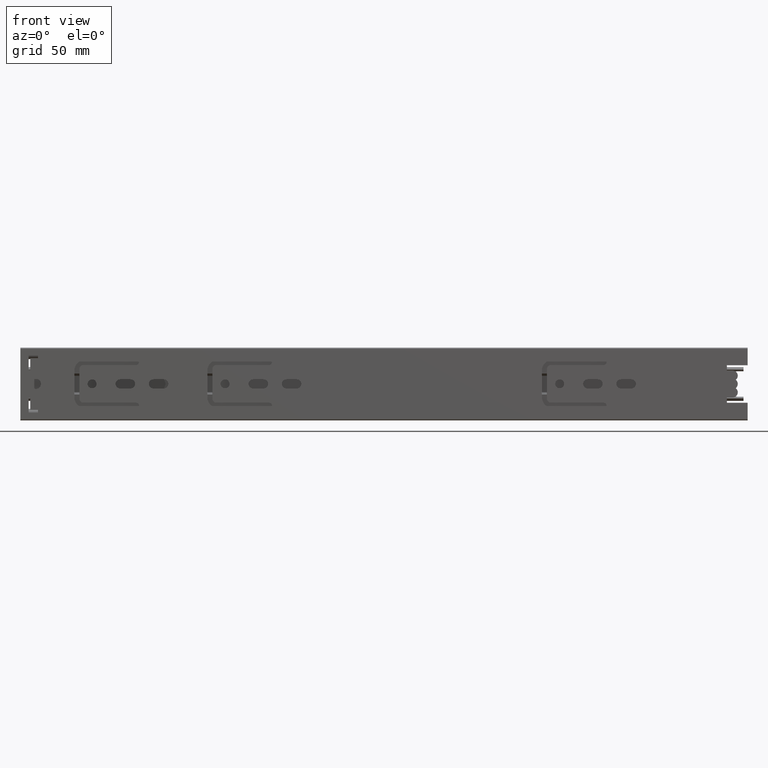
[diagram: clean part render]
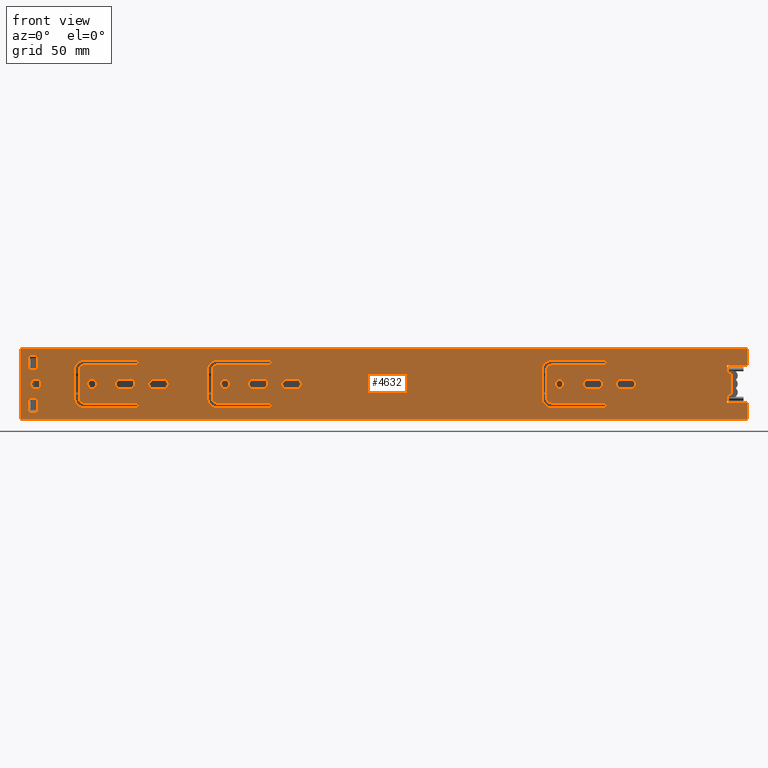
[diagram: same view with one face highlighted and labeled with its STEP entity id]
A machine part, front view. The second image highlights one B-rep face of the part: STEP entity #4632.
In plain terms, the highlighted planar face has unit normal (0, -1, 0).
Its self-contained STEP definition (entity closure, byte-faithful):
#162=FACE_BOUND('',#492,.T.);
#163=FACE_BOUND('',#493,.T.);
#164=FACE_BOUND('',#494,.T.);
#165=FACE_BOUND('',#495,.T.);
#166=FACE_BOUND('',#496,.T.);
#167=FACE_BOUND('',#497,.T.);
#168=FACE_BOUND('',#498,.T.);
#169=FACE_BOUND('',#499,.T.);
#170=FACE_BOUND('',#500,.T.);
#171=FACE_BOUND('',#501,.T.);
#172=FACE_BOUND('',#502,.T.);
#173=FACE_BOUND('',#503,.T.);
#174=FACE_BOUND('',#504,.T.);
#175=FACE_BOUND('',#505,.T.);
#176=FACE_BOUND('',#506,.T.);
#231=FACE_OUTER_BOUND('',#491,.T.);
#491=EDGE_LOOP('',(#3266,#3267,#3268,#3269,#3270,#3271,#3272,#3273,#3274,
#3275,#3276,#3277));
#492=EDGE_LOOP('',(#3278,#3279,#3280,#3281));
#493=EDGE_LOOP('',(#3282,#3283,#3284,#3285));
#494=EDGE_LOOP('',(#3286,#3287,#3288,#3289));
#495=EDGE_LOOP('',(#3290,#3291,#3292,#3293));
#496=EDGE_LOOP('',(#3294));
#497=EDGE_LOOP('',(#3295));
#498=EDGE_LOOP('',(#3296));
#499=EDGE_LOOP('',(#3297));
#500=EDGE_LOOP('',(#3298,#3299,#3300,#3301));
#501=EDGE_LOOP('',(#3302,#3303,#3304,#3305));
#502=EDGE_LOOP('',(#3306,#3307,#3308,#3309));
#503=EDGE_LOOP('',(#3310,#3311,#3312,#3313));
#504=EDGE_LOOP('',(#3314,#3315,#3316,#3317,#3318,#3319,#3320,#3321,#3322,
#3323,#3324,#3325));
#505=EDGE_LOOP('',(#3326,#3327,#3328,#3329,#3330,#3331,#3332,#3333,#3334,
#3335,#3336,#3337));
#506=EDGE_LOOP('',(#3338,#3339,#3340,#3341,#3342,#3343,#3344,#3345,#3346,
#3347,#3348,#3349));
#783=LINE('',#6746,#1281);
#788=LINE('',#6755,#1286);
#839=LINE('',#6927,#1337);
#842=LINE('',#6932,#1340);
#844=LINE('',#6936,#1342);
#845=LINE('',#6939,#1343);
#848=LINE('',#6944,#1346);
#849=LINE('',#6947,#1347);
#850=LINE('',#6949,#1348);
#851=LINE('',#6951,#1349);
#852=LINE('',#6953,#1350);
#853=LINE('',#6954,#1351);
#854=LINE('',#6959,#1352);
#855=LINE('',#6962,#1353);
#856=LINE('',#6967,#1354);
#857=LINE('',#6970,#1355);
#858=LINE('',#6975,#1356);
#859=LINE('',#6978,#1357);
#860=LINE('',#6981,#1358);
#861=LINE('',#6983,#1359);
#862=LINE('',#6985,#1360);
#863=LINE('',#6986,#1361);
#864=LINE('',#6997,#1362);
#865=LINE('',#6999,#1363);
#866=LINE('',#7001,#1364);
#867=LINE('',#7002,#1365);
#868=LINE('',#7007,#1366);
#869=LINE('',#7010,#1367);
#870=LINE('',#7015,#1368);
#871=LINE('',#7018,#1369);
#872=LINE('',#7023,#1370);
#873=LINE('',#7026,#1371);
#874=LINE('',#7031,#1372);
#875=LINE('',#7035,#1373);
#876=LINE('',#7039,#1374);
#877=LINE('',#7043,#1375);
#878=LINE('',#7047,#1376);
#879=LINE('',#7050,#1377);
#880=LINE('',#7055,#1378);
#881=LINE('',#7059,#1379);
#882=LINE('',#7063,#1380);
#883=LINE('',#7067,#1381);
#884=LINE('',#7071,#1382);
#885=LINE('',#7074,#1383);
#886=LINE('',#7079,#1384);
#887=LINE('',#7083,#1385);
#888=LINE('',#7087,#1386);
#889=LINE('',#7091,#1387);
#890=LINE('',#7095,#1388);
#891=LINE('',#7098,#1389);
#1281=VECTOR('',#5367,10.);
#1286=VECTOR('',#5374,2.00000000000003);
#1337=VECTOR('',#5501,2.00000000000003);
#1340=VECTOR('',#5506,4.00000000000001);
#1342=VECTOR('',#5510,10.);
#1343=VECTOR('',#5513,3.99999999999999);
#1346=VECTOR('',#5518,10.);
#1347=VECTOR('',#5521,8.);
#1348=VECTOR('',#5522,350.);
#1349=VECTOR('',#5523,34.);
#1350=VECTOR('',#5524,350.);
#1351=VECTOR('',#5525,8.);
#1352=VECTOR('',#5528,5.);
#1353=VECTOR('',#5531,5.);
#1354=VECTOR('',#5534,5.);
#1355=VECTOR('',#5537,5.);
#1356=VECTOR('',#5540,5.);
#1357=VECTOR('',#5543,5.);
#1358=VECTOR('',#5544,7.);
#1359=VECTOR('',#5545,4.50000000000003);
#1360=VECTOR('',#5546,7.);
#1361=VECTOR('',#5547,4.50000000000003);
#1362=VECTOR('',#5556,7.);
#1363=VECTOR('',#5557,4.50000000000003);
#1364=VECTOR('',#5558,7.);
#1365=VECTOR('',#5559,4.50000000000003);
#1366=VECTOR('',#5562,5.);
#1367=VECTOR('',#5565,5.);
#1368=VECTOR('',#5568,5.);
#1369=VECTOR('',#5571,5.);
#1370=VECTOR('',#5574,5.);
#1371=VECTOR('',#5577,5.);
#1372=VECTOR('',#5580,25.4);
#1373=VECTOR('',#5583,14.2);
#1374=VECTOR('',#5586,25.4);
#1375=VECTOR('',#5589,24.8);
#1376=VECTOR('',#5592,13.);
#1377=VECTOR('',#5595,24.8);
#1378=VECTOR('',#5598,24.7999999999999);
#1379=VECTOR('',#5601,13.);
#1380=VECTOR('',#5604,24.7999999999999);
#1381=VECTOR('',#5607,25.3999999999999);
#1382=VECTOR('',#5610,14.2);
#1383=VECTOR('',#5613,25.3999999999999);
#1384=VECTOR('',#5616,25.4);
#1385=VECTOR('',#5619,14.2);
#1386=VECTOR('',#5622,25.4);
#1387=VECTOR('',#5625,24.8);
#1388=VECTOR('',#5628,13.);
#1389=VECTOR('',#5631,24.8);
#1808=CIRCLE('',#4930,2.2);
#1809=CIRCLE('',#4931,2.2);
#1810=CIRCLE('',#4932,2.20000000000006);
#1811=CIRCLE('',#4933,2.20000000000006);
#1812=CIRCLE('',#4934,2.2);
#1813=CIRCLE('',#4935,2.2);
#1814=CIRCLE('',#4936,2.45);
#1815=CIRCLE('',#4937,2.15);
#1816=CIRCLE('',#4938,2.15);
#1817=CIRCLE('',#4939,2.15);
#1818=CIRCLE('',#4940,2.2);
#1819=CIRCLE('',#4941,2.2);
#1820=CIRCLE('',#4942,2.20000000000006);
#1821=CIRCLE('',#4943,2.20000000000006);
#1822=CIRCLE('',#4944,2.2);
#1823=CIRCLE('',#4945,2.2);
#1824=CIRCLE('',#4946,1.2);
#1825=CIRCLE('',#4947,1.99999999999999);
#1826=CIRCLE('',#4948,1.99999999999998);
#1827=CIRCLE('',#4949,1.2);
#1828=CIRCLE('',#4950,5.);
#1829=CIRCLE('',#4951,5.);
#1830=CIRCLE('',#4952,1.2);
#1831=CIRCLE('',#4953,5.);
#1832=CIRCLE('',#4954,5.);
#1833=CIRCLE('',#4955,1.2);
#1834=CIRCLE('',#4956,2.);
#1835=CIRCLE('',#4957,2.00000000000001);
#1836=CIRCLE('',#4958,1.2);
#1837=CIRCLE('',#4959,1.99999999999999);
#1838=CIRCLE('',#4960,1.99999999999999);
#1839=CIRCLE('',#4961,1.2);
#1840=CIRCLE('',#4962,5.00000000000002);
#1841=CIRCLE('',#4963,5.00000000000002);
#1968=VERTEX_POINT('',#6743);
#1969=VERTEX_POINT('',#6745);
#1972=VERTEX_POINT('',#6753);
#2055=VERTEX_POINT('',#6926);
#2056=VERTEX_POINT('',#6930);
#2057=VERTEX_POINT('',#6934);
#2058=VERTEX_POINT('',#6938);
#2059=VERTEX_POINT('',#6942);
#2060=VERTEX_POINT('',#6946);
#2061=VERTEX_POINT('',#6948);
#2062=VERTEX_POINT('',#6950);
#2063=VERTEX_POINT('',#6952);
#2064=VERTEX_POINT('',#6955);
#2065=VERTEX_POINT('',#6956);
#2066=VERTEX_POINT('',#6958);
#2067=VERTEX_POINT('',#6960);
#2068=VERTEX_POINT('',#6963);
#2069=VERTEX_POINT('',#6964);
#2070=VERTEX_POINT('',#6966);
#2071=VERTEX_POINT('',#6968);
#2072=VERTEX_POINT('',#6971);
#2073=VERTEX_POINT('',#6972);
#2074=VERTEX_POINT('',#6974);
#2075=VERTEX_POINT('',#6976);
#2076=VERTEX_POINT('',#6979);
#2077=VERTEX_POINT('',#6980);
#2078=VERTEX_POINT('',#6982);
#2079=VERTEX_POINT('',#6984);
#2080=VERTEX_POINT('',#6987);
#2081=VERTEX_POINT('',#6989);
#2082=VERTEX_POINT('',#6991);
#2083=VERTEX_POINT('',#6993);
#2084=VERTEX_POINT('',#6995);
#2085=VERTEX_POINT('',#6996);
#2086=VERTEX_POINT('',#6998);
#2087=VERTEX_POINT('',#7000);
#2088=VERTEX_POINT('',#7003);
#2089=VERTEX_POINT('',#7004);
#2090=VERTEX_POINT('',#7006);
#2091=VERTEX_POINT('',#7008);
#2092=VERTEX_POINT('',#7011);
#2093=VERTEX_POINT('',#7012);
#2094=VERTEX_POINT('',#7014);
#2095=VERTEX_POINT('',#7016);
#2096=VERTEX_POINT('',#7019);
#2097=VERTEX_POINT('',#7020);
#2098=VERTEX_POINT('',#7022);
#2099=VERTEX_POINT('',#7024);
#2100=VERTEX_POINT('',#7027);
#2101=VERTEX_POINT('',#7028);
#2102=VERTEX_POINT('',#7030);
#2103=VERTEX_POINT('',#7032);
#2104=VERTEX_POINT('',#7034);
#2105=VERTEX_POINT('',#7036);
#2106=VERTEX_POINT('',#7038);
#2107=VERTEX_POINT('',#7040);
#2108=VERTEX_POINT('',#7042);
#2109=VERTEX_POINT('',#7044);
#2110=VERTEX_POINT('',#7046);
#2111=VERTEX_POINT('',#7048);
#2112=VERTEX_POINT('',#7051);
#2113=VERTEX_POINT('',#7052);
#2114=VERTEX_POINT('',#7054);
#2115=VERTEX_POINT('',#7056);
#2116=VERTEX_POINT('',#7058);
#2117=VERTEX_POINT('',#7060);
#2118=VERTEX_POINT('',#7062);
#2119=VERTEX_POINT('',#7064);
#2120=VERTEX_POINT('',#7066);
#2121=VERTEX_POINT('',#7068);
#2122=VERTEX_POINT('',#7070);
#2123=VERTEX_POINT('',#7072);
#2124=VERTEX_POINT('',#7075);
#2125=VERTEX_POINT('',#7076);
#2126=VERTEX_POINT('',#7078);
#2127=VERTEX_POINT('',#7080);
#2128=VERTEX_POINT('',#7082);
#2129=VERTEX_POINT('',#7084);
#2130=VERTEX_POINT('',#7086);
#2131=VERTEX_POINT('',#7088);
#2132=VERTEX_POINT('',#7090);
#2133=VERTEX_POINT('',#7092);
#2134=VERTEX_POINT('',#7094);
#2135=VERTEX_POINT('',#7096);
#2439=EDGE_CURVE('',#1968,#1969,#783,.T.);
#2444=EDGE_CURVE('',#1972,#1968,#788,.T.);
#2529=EDGE_CURVE('',#1969,#2055,#839,.T.);
#2532=EDGE_CURVE('',#1972,#2056,#842,.T.);
#2534=EDGE_CURVE('',#2056,#2057,#844,.T.);
#2535=EDGE_CURVE('',#2058,#2055,#845,.T.);
#2538=EDGE_CURVE('',#2059,#2058,#848,.T.);
#2539=EDGE_CURVE('',#2060,#2057,#849,.T.);
#2540=EDGE_CURVE('',#2061,#2060,#850,.T.);
#2541=EDGE_CURVE('',#2062,#2061,#851,.T.);
#2542=EDGE_CURVE('',#2062,#2063,#852,.T.);
#2543=EDGE_CURVE('',#2059,#2063,#853,.T.);
#2544=EDGE_CURVE('',#2064,#2065,#1808,.T.);
#2545=EDGE_CURVE('',#2065,#2066,#854,.T.);
#2546=EDGE_CURVE('',#2066,#2067,#1809,.T.);
#2547=EDGE_CURVE('',#2067,#2064,#855,.T.);
#2548=EDGE_CURVE('',#2068,#2069,#1810,.T.);
#2549=EDGE_CURVE('',#2069,#2070,#856,.T.);
#2550=EDGE_CURVE('',#2070,#2071,#1811,.T.);
#2551=EDGE_CURVE('',#2071,#2068,#857,.T.);
#2552=EDGE_CURVE('',#2072,#2073,#1812,.T.);
#2553=EDGE_CURVE('',#2073,#2074,#858,.T.);
#2554=EDGE_CURVE('',#2074,#2075,#1813,.T.);
#2555=EDGE_CURVE('',#2075,#2072,#859,.T.);
#2556=EDGE_CURVE('',#2076,#2077,#860,.T.);
#2557=EDGE_CURVE('',#2077,#2078,#861,.T.);
#2558=EDGE_CURVE('',#2078,#2079,#862,.T.);
#2559=EDGE_CURVE('',#2079,#2076,#863,.T.);
#2560=EDGE_CURVE('',#2080,#2080,#1814,.T.);
#2561=EDGE_CURVE('',#2081,#2081,#1815,.T.);
#2562=EDGE_CURVE('',#2082,#2082,#1816,.T.);
#2563=EDGE_CURVE('',#2083,#2083,#1817,.T.);
#2564=EDGE_CURVE('',#2084,#2085,#864,.T.);
#2565=EDGE_CURVE('',#2085,#2086,#865,.T.);
#2566=EDGE_CURVE('',#2086,#2087,#866,.T.);
#2567=EDGE_CURVE('',#2087,#2084,#867,.T.);
#2568=EDGE_CURVE('',#2088,#2089,#1818,.T.);
#2569=EDGE_CURVE('',#2089,#2090,#868,.T.);
#2570=EDGE_CURVE('',#2090,#2091,#1819,.T.);
#2571=EDGE_CURVE('',#2091,#2088,#869,.T.);
#2572=EDGE_CURVE('',#2092,#2093,#1820,.T.);
#2573=EDGE_CURVE('',#2093,#2094,#870,.T.);
#2574=EDGE_CURVE('',#2094,#2095,#1821,.T.);
#2575=EDGE_CURVE('',#2095,#2092,#871,.T.);
#2576=EDGE_CURVE('',#2096,#2097,#1822,.T.);
#2577=EDGE_CURVE('',#2097,#2098,#872,.T.);
#2578=EDGE_CURVE('',#2098,#2099,#1823,.T.);
#2579=EDGE_CURVE('',#2099,#2096,#873,.T.);
#2580=EDGE_CURVE('',#2100,#2101,#1824,.T.);
#2581=EDGE_CURVE('',#2101,#2102,#874,.T.);
#2582=EDGE_CURVE('',#2102,#2103,#1825,.T.);
#2583=EDGE_CURVE('',#2103,#2104,#875,.T.);
#2584=EDGE_CURVE('',#2104,#2105,#1826,.T.);
#2585=EDGE_CURVE('',#2105,#2106,#876,.T.);
#2586=EDGE_CURVE('',#2106,#2107,#1827,.T.);
#2587=EDGE_CURVE('',#2107,#2108,#877,.T.);
#2588=EDGE_CURVE('',#2108,#2109,#1828,.T.);
#2589=EDGE_CURVE('',#2109,#2110,#878,.T.);
#2590=EDGE_CURVE('',#2110,#2111,#1829,.T.);
#2591=EDGE_CURVE('',#2111,#2100,#879,.T.);
#2592=EDGE_CURVE('',#2112,#2113,#1830,.T.);
#2593=EDGE_CURVE('',#2113,#2114,#880,.T.);
#2594=EDGE_CURVE('',#2114,#2115,#1831,.T.);
#2595=EDGE_CURVE('',#2115,#2116,#881,.T.);
#2596=EDGE_CURVE('',#2116,#2117,#1832,.T.);
#2597=EDGE_CURVE('',#2117,#2118,#882,.T.);
#2598=EDGE_CURVE('',#2118,#2119,#1833,.T.);
#2599=EDGE_CURVE('',#2119,#2120,#883,.T.);
#2600=EDGE_CURVE('',#2120,#2121,#1834,.T.);
#2601=EDGE_CURVE('',#2121,#2122,#884,.T.);
#2602=EDGE_CURVE('',#2122,#2123,#1835,.T.);
#2603=EDGE_CURVE('',#2123,#2112,#885,.T.);
#2604=EDGE_CURVE('',#2124,#2125,#1836,.T.);
#2605=EDGE_CURVE('',#2125,#2126,#886,.T.);
#2606=EDGE_CURVE('',#2126,#2127,#1837,.T.);
#2607=EDGE_CURVE('',#2127,#2128,#887,.T.);
#2608=EDGE_CURVE('',#2128,#2129,#1838,.T.);
#2609=EDGE_CURVE('',#2129,#2130,#888,.T.);
#2610=EDGE_CURVE('',#2130,#2131,#1839,.T.);
#2611=EDGE_CURVE('',#2131,#2132,#889,.T.);
#2612=EDGE_CURVE('',#2132,#2133,#1840,.T.);
#2613=EDGE_CURVE('',#2133,#2134,#890,.T.);
#2614=EDGE_CURVE('',#2134,#2135,#1841,.T.);
#2615=EDGE_CURVE('',#2135,#2124,#891,.T.);
#3266=ORIENTED_EDGE('',*,*,#2444,.F.);
#3267=ORIENTED_EDGE('',*,*,#2532,.T.);
#3268=ORIENTED_EDGE('',*,*,#2534,.T.);
#3269=ORIENTED_EDGE('',*,*,#2539,.F.);
#3270=ORIENTED_EDGE('',*,*,#2540,.F.);
#3271=ORIENTED_EDGE('',*,*,#2541,.F.);
#3272=ORIENTED_EDGE('',*,*,#2542,.T.);
#3273=ORIENTED_EDGE('',*,*,#2543,.F.);
#3274=ORIENTED_EDGE('',*,*,#2538,.T.);
#3275=ORIENTED_EDGE('',*,*,#2535,.T.);
#3276=ORIENTED_EDGE('',*,*,#2529,.F.);
#3277=ORIENTED_EDGE('',*,*,#2439,.F.);
#3278=ORIENTED_EDGE('',*,*,#2544,.T.);
#3279=ORIENTED_EDGE('',*,*,#2545,.T.);
#3280=ORIENTED_EDGE('',*,*,#2546,.T.);
#3281=ORIENTED_EDGE('',*,*,#2547,.T.);
#3282=ORIENTED_EDGE('',*,*,#2548,.T.);
#3283=ORIENTED_EDGE('',*,*,#2549,.T.);
#3284=ORIENTED_EDGE('',*,*,#2550,.T.);
#3285=ORIENTED_EDGE('',*,*,#2551,.T.);
#3286=ORIENTED_EDGE('',*,*,#2552,.T.);
#3287=ORIENTED_EDGE('',*,*,#2553,.T.);
#3288=ORIENTED_EDGE('',*,*,#2554,.T.);
#3289=ORIENTED_EDGE('',*,*,#2555,.T.);
#3290=ORIENTED_EDGE('',*,*,#2556,.T.);
#3291=ORIENTED_EDGE('',*,*,#2557,.T.);
#3292=ORIENTED_EDGE('',*,*,#2558,.T.);
#3293=ORIENTED_EDGE('',*,*,#2559,.T.);
#3294=ORIENTED_EDGE('',*,*,#2560,.T.);
#3295=ORIENTED_EDGE('',*,*,#2561,.T.);
#3296=ORIENTED_EDGE('',*,*,#2562,.T.);
#3297=ORIENTED_EDGE('',*,*,#2563,.T.);
#3298=ORIENTED_EDGE('',*,*,#2564,.T.);
#3299=ORIENTED_EDGE('',*,*,#2565,.T.);
#3300=ORIENTED_EDGE('',*,*,#2566,.T.);
#3301=ORIENTED_EDGE('',*,*,#2567,.T.);
#3302=ORIENTED_EDGE('',*,*,#2568,.T.);
#3303=ORIENTED_EDGE('',*,*,#2569,.T.);
#3304=ORIENTED_EDGE('',*,*,#2570,.T.);
#3305=ORIENTED_EDGE('',*,*,#2571,.T.);
#3306=ORIENTED_EDGE('',*,*,#2572,.T.);
#3307=ORIENTED_EDGE('',*,*,#2573,.T.);
#3308=ORIENTED_EDGE('',*,*,#2574,.T.);
#3309=ORIENTED_EDGE('',*,*,#2575,.T.);
#3310=ORIENTED_EDGE('',*,*,#2576,.T.);
#3311=ORIENTED_EDGE('',*,*,#2577,.T.);
#3312=ORIENTED_EDGE('',*,*,#2578,.T.);
#3313=ORIENTED_EDGE('',*,*,#2579,.T.);
#3314=ORIENTED_EDGE('',*,*,#2580,.T.);
#3315=ORIENTED_EDGE('',*,*,#2581,.T.);
#3316=ORIENTED_EDGE('',*,*,#2582,.T.);
#3317=ORIENTED_EDGE('',*,*,#2583,.T.);
#3318=ORIENTED_EDGE('',*,*,#2584,.T.);
#3319=ORIENTED_EDGE('',*,*,#2585,.T.);
#3320=ORIENTED_EDGE('',*,*,#2586,.T.);
#3321=ORIENTED_EDGE('',*,*,#2587,.T.);
#3322=ORIENTED_EDGE('',*,*,#2588,.T.);
#3323=ORIENTED_EDGE('',*,*,#2589,.T.);
#3324=ORIENTED_EDGE('',*,*,#2590,.T.);
#3325=ORIENTED_EDGE('',*,*,#2591,.T.);
#3326=ORIENTED_EDGE('',*,*,#2592,.T.);
#3327=ORIENTED_EDGE('',*,*,#2593,.T.);
#3328=ORIENTED_EDGE('',*,*,#2594,.T.);
#3329=ORIENTED_EDGE('',*,*,#2595,.T.);
#3330=ORIENTED_EDGE('',*,*,#2596,.T.);
#3331=ORIENTED_EDGE('',*,*,#2597,.T.);
#3332=ORIENTED_EDGE('',*,*,#2598,.T.);
#3333=ORIENTED_EDGE('',*,*,#2599,.T.);
#3334=ORIENTED_EDGE('',*,*,#2600,.T.);
#3335=ORIENTED_EDGE('',*,*,#2601,.T.);
#3336=ORIENTED_EDGE('',*,*,#2602,.T.);
#3337=ORIENTED_EDGE('',*,*,#2603,.T.);
#3338=ORIENTED_EDGE('',*,*,#2604,.T.);
#3339=ORIENTED_EDGE('',*,*,#2605,.T.);
#3340=ORIENTED_EDGE('',*,*,#2606,.T.);
#3341=ORIENTED_EDGE('',*,*,#2607,.T.);
#3342=ORIENTED_EDGE('',*,*,#2608,.T.);
#3343=ORIENTED_EDGE('',*,*,#2609,.T.);
#3344=ORIENTED_EDGE('',*,*,#2610,.T.);
#3345=ORIENTED_EDGE('',*,*,#2611,.T.);
#3346=ORIENTED_EDGE('',*,*,#2612,.T.);
#3347=ORIENTED_EDGE('',*,*,#2613,.T.);
#3348=ORIENTED_EDGE('',*,*,#2614,.T.);
#3349=ORIENTED_EDGE('',*,*,#2615,.T.);
#4475=PLANE('',#4929);
#4632=ADVANCED_FACE('',(#231,#162,#163,#164,#165,#166,#167,#168,#169,#170,
#171,#172,#173,#174,#175,#176),#4475,.T.);
#4929=AXIS2_PLACEMENT_3D('',#6945,#5519,#5520);
#4930=AXIS2_PLACEMENT_3D('',#6957,#5526,#5527);
#4931=AXIS2_PLACEMENT_3D('',#6961,#5529,#5530);
#4932=AXIS2_PLACEMENT_3D('',#6965,#5532,#5533);
#4933=AXIS2_PLACEMENT_3D('',#6969,#5535,#5536);
#4934=AXIS2_PLACEMENT_3D('',#6973,#5538,#5539);
#4935=AXIS2_PLACEMENT_3D('',#6977,#5541,#5542);
#4936=AXIS2_PLACEMENT_3D('',#6988,#5548,#5549);
#4937=AXIS2_PLACEMENT_3D('',#6990,#5550,#5551);
#4938=AXIS2_PLACEMENT_3D('',#6992,#5552,#5553);
#4939=AXIS2_PLACEMENT_3D('',#6994,#5554,#5555);
#4940=AXIS2_PLACEMENT_3D('',#7005,#5560,#5561);
#4941=AXIS2_PLACEMENT_3D('',#7009,#5563,#5564);
#4942=AXIS2_PLACEMENT_3D('',#7013,#5566,#5567);
#4943=AXIS2_PLACEMENT_3D('',#7017,#5569,#5570);
#4944=AXIS2_PLACEMENT_3D('',#7021,#5572,#5573);
#4945=AXIS2_PLACEMENT_3D('',#7025,#5575,#5576);
#4946=AXIS2_PLACEMENT_3D('',#7029,#5578,#5579);
#4947=AXIS2_PLACEMENT_3D('',#7033,#5581,#5582);
#4948=AXIS2_PLACEMENT_3D('',#7037,#5584,#5585);
#4949=AXIS2_PLACEMENT_3D('',#7041,#5587,#5588);
#4950=AXIS2_PLACEMENT_3D('',#7045,#5590,#5591);
#4951=AXIS2_PLACEMENT_3D('',#7049,#5593,#5594);
#4952=AXIS2_PLACEMENT_3D('',#7053,#5596,#5597);
#4953=AXIS2_PLACEMENT_3D('',#7057,#5599,#5600);
#4954=AXIS2_PLACEMENT_3D('',#7061,#5602,#5603);
#4955=AXIS2_PLACEMENT_3D('',#7065,#5605,#5606);
#4956=AXIS2_PLACEMENT_3D('',#7069,#5608,#5609);
#4957=AXIS2_PLACEMENT_3D('',#7073,#5611,#5612);
#4958=AXIS2_PLACEMENT_3D('',#7077,#5614,#5615);
#4959=AXIS2_PLACEMENT_3D('',#7081,#5617,#5618);
#4960=AXIS2_PLACEMENT_3D('',#7085,#5620,#5621);
#4961=AXIS2_PLACEMENT_3D('',#7089,#5623,#5624);
#4962=AXIS2_PLACEMENT_3D('',#7093,#5626,#5627);
#4963=AXIS2_PLACEMENT_3D('',#7097,#5629,#5630);
#5367=DIRECTION('',(0.,-3.06161699786838E-16,-1.));
#5374=DIRECTION('',(1.,-3.39907768361718E-31,-1.11022302462514E-15));
#5501=DIRECTION('',(-1.,0.,0.));
#5506=DIRECTION('',(0.,3.06161699786838E-16,1.));
#5510=DIRECTION('',(1.,0.,0.));
#5513=DIRECTION('',(0.,3.06161699786838E-16,1.));
#5518=DIRECTION('',(-1.,-4.71385096176607E-32,-1.53966056663784E-16));
#5519=DIRECTION('center_axis',(0.,-1.,3.06161699786838E-16));
#5520=DIRECTION('ref_axis',(0.,-3.06161699786838E-16,-1.));
#5521=DIRECTION('',(0.,-3.06161699786838E-16,-1.));
#5522=DIRECTION('',(1.,0.,0.));
#5523=DIRECTION('',(0.,-3.06161699786838E-16,1.));
#5524=DIRECTION('',(1.,0.,0.));
#5525=DIRECTION('',(0.,-3.06161699786838E-16,-1.));
#5526=DIRECTION('center_axis',(0.,1.,-3.06161699786838E-16));
#5527=DIRECTION('ref_axis',(0.,-2.77555756156289E-16,-1.));
#5528=DIRECTION('',(1.,-1.35963107344689E-31,-4.44089209850063E-16));
#5529=DIRECTION('center_axis',(0.,1.,-3.06161699786838E-16));
#5530=DIRECTION('ref_axis',(0.,2.77555756156289E-16,1.));
#5531=DIRECTION('',(-1.,1.35963107344689E-31,4.44089209850063E-16));
#5532=DIRECTION('center_axis',(0.,1.,-3.06161699786838E-16));
#5533=DIRECTION('ref_axis',(0.,-2.77555756156289E-16,-1.));
#5534=DIRECTION('',(1.,1.35963107344689E-31,4.44089209850063E-16));
#5535=DIRECTION('center_axis',(0.,1.,-3.06161699786838E-16));
#5536=DIRECTION('ref_axis',(0.,2.77555756156289E-16,1.));
#5537=DIRECTION('',(-1.,0.,0.));
#5538=DIRECTION('center_axis',(0.,1.,-3.06161699786838E-16));
#5539=DIRECTION('ref_axis',(0.,-2.77555756156289E-16,-1.));
#5540=DIRECTION('',(1.,0.,0.));
#5541=DIRECTION('center_axis',(0.,1.,-3.06161699786838E-16));
#5542=DIRECTION('ref_axis',(0.,2.77555756156289E-16,1.));
#5543=DIRECTION('',(-1.,1.35963107344689E-31,4.44089209850063E-16));
#5544=DIRECTION('',(-1.58603289232165E-16,3.06161699786838E-16,1.));
#5545=DIRECTION('',(1.,0.,0.));
#5546=DIRECTION('',(0.,-3.06161699786838E-16,-1.));
#5547=DIRECTION('',(-1.,0.,0.));
#5548=DIRECTION('center_axis',(0.,1.,-3.06161699786838E-16));
#5549=DIRECTION('ref_axis',(-1.,0.,0.));
#5550=DIRECTION('center_axis',(0.,1.,-3.06161699786838E-16));
#5551=DIRECTION('ref_axis',(-1.,0.,0.));
#5552=DIRECTION('center_axis',(0.,1.,-3.06161699786838E-16));
#5553=DIRECTION('ref_axis',(-1.,0.,0.));
#5554=DIRECTION('center_axis',(0.,1.,-3.06161699786838E-16));
#5555=DIRECTION('ref_axis',(-1.,0.,0.));
#5556=DIRECTION('',(-4.75809867696496E-16,3.06161699786838E-16,1.));
#5557=DIRECTION('',(1.,0.,0.));
#5558=DIRECTION('',(3.1720657846433E-16,-3.06161699786838E-16,-1.));
#5559=DIRECTION('',(-1.,0.,0.));
#5560=DIRECTION('center_axis',(0.,1.,-3.06161699786838E-16));
#5561=DIRECTION('ref_axis',(0.,-2.77555756156289E-16,-1.));
#5562=DIRECTION('',(1.,0.,0.));
#5563=DIRECTION('center_axis',(0.,1.,-3.06161699786838E-16));
#5564=DIRECTION('ref_axis',(0.,2.77555756156289E-16,1.));
#5565=DIRECTION('',(-1.,2.71926214689378E-31,8.88178419700125E-16));
#5566=DIRECTION('center_axis',(0.,1.,-3.06161699786838E-16));
#5567=DIRECTION('ref_axis',(0.,-2.77555756156289E-16,-1.));
#5568=DIRECTION('',(1.,0.,0.));
#5569=DIRECTION('center_axis',(0.,1.,-3.06161699786838E-16));
#5570=DIRECTION('ref_axis',(0.,2.77555756156289E-16,1.));
#5571=DIRECTION('',(-1.,0.,0.));
#5572=DIRECTION('center_axis',(0.,1.,-3.06161699786838E-16));
#5573=DIRECTION('ref_axis',(0.,-2.77555756156289E-16,-1.));
#5574=DIRECTION('',(1.,-1.35963107344689E-31,-4.44089209850063E-16));
#5575=DIRECTION('center_axis',(0.,1.,-3.06161699786838E-16));
#5576=DIRECTION('ref_axis',(0.,2.77555756156289E-16,1.));
#5577=DIRECTION('',(-1.,-1.35963107344689E-31,-4.44089209850063E-16));
#5578=DIRECTION('center_axis',(0.,1.,-3.06161699786838E-16));
#5579=DIRECTION('ref_axis',(0.,3.70074341541719E-16,1.));
#5580=DIRECTION('',(-1.,3.21172694515013E-31,1.04902962956708E-15));
#5581=DIRECTION('center_axis',(0.,-1.,3.06161699786838E-16));
#5582=DIRECTION('ref_axis',(0.,3.70074341541719E-16,1.));
#5583=DIRECTION('',(0.,-3.06161699786838E-16,-1.));
#5584=DIRECTION('center_axis',(0.,-1.,3.06161699786838E-16));
#5585=DIRECTION('ref_axis',(-1.,3.4923529658222E-30,9.43689570931387E-15));
#5586=DIRECTION('',(1.,-1.07057564838338E-31,-3.49676543189025E-16));
#5587=DIRECTION('center_axis',(0.,1.,-3.06161699786838E-16));
#5588=DIRECTION('ref_axis',(0.,3.70074341541719E-16,1.));
#5589=DIRECTION('',(-1.,1.23353625615141E-31,4.02903517001065E-16));
#5590=DIRECTION('center_axis',(0.,1.,-3.06161699786838E-16));
#5591=DIRECTION('ref_axis',(1.,0.,0.));
#5592=DIRECTION('',(0.,3.06161699786838E-16,1.));
#5593=DIRECTION('center_axis',(0.,1.,-3.06161699786838E-16));
#5594=DIRECTION('ref_axis',(0.,-3.70074341541719E-16,-1.));
#5595=DIRECTION('',(1.,1.09647667213459E-31,3.58136459556502E-16));
#5596=DIRECTION('center_axis',(0.,1.,-3.06161699786838E-16));
#5597=DIRECTION('ref_axis',(0.,0.,1.));
#5598=DIRECTION('',(-1.,5.48238336067296E-32,1.79068229778252E-16));
#5599=DIRECTION('center_axis',(0.,1.,-3.06161699786838E-16));
#5600=DIRECTION('ref_axis',(1.,0.,0.));
#5601=DIRECTION('',(0.,3.06161699786838E-16,1.));
#5602=DIRECTION('center_axis',(0.,1.,-3.06161699786838E-16));
#5603=DIRECTION('ref_axis',(0.,0.,-1.));
#5604=DIRECTION('',(1.,5.48238336067296E-32,1.79068229778252E-16));
#5605=DIRECTION('center_axis',(0.,1.,-3.06161699786838E-16));
#5606=DIRECTION('ref_axis',(0.,0.,1.));
#5607=DIRECTION('',(-1.,5.35287824191691E-32,1.74838271594513E-16));
#5608=DIRECTION('center_axis',(0.,-1.,3.06161699786838E-16));
#5609=DIRECTION('ref_axis',(2.22044604925032E-15,0.,1.));
#5610=DIRECTION('',(-3.127388801761E-16,-3.06161699786838E-16,-1.));
#5611=DIRECTION('center_axis',(0.,-1.,3.06161699786838E-16));
#5612=DIRECTION('ref_axis',(-1.,0.,-4.99600361081318E-15));
#5613=DIRECTION('',(1.,-2.67643912095845E-32,-8.74191357972567E-17));
#5614=DIRECTION('center_axis',(0.,1.,-3.06161699786838E-16));
#5615=DIRECTION('ref_axis',(0.,3.70074341541719E-16,1.));
#5616=DIRECTION('',(-1.,2.14115129676676E-31,6.99353086378052E-16));
#5617=DIRECTION('center_axis',(0.,-1.,3.06161699786838E-16));
#5618=DIRECTION('ref_axis',(0.,3.70074341541719E-16,1.));
#5619=DIRECTION('',(0.,-3.06161699786838E-16,-1.));
#5620=DIRECTION('center_axis',(0.,-1.,3.06161699786838E-16));
#5621=DIRECTION('ref_axis',(-1.,2.25975780141436E-30,6.10622663543838E-15));
#5622=DIRECTION('',(1.,-5.35287824191689E-32,-1.74838271594513E-16));
#5623=DIRECTION('center_axis',(0.,1.,-3.06161699786838E-16));
#5624=DIRECTION('ref_axis',(0.,3.70074341541719E-16,1.));
#5625=DIRECTION('',(-1.,1.37059584016824E-31,4.47670574445628E-16));
#5626=DIRECTION('center_axis',(0.,1.,-3.06161699786838E-16));
#5627=DIRECTION('ref_axis',(1.,0.,0.));
#5628=DIRECTION('',(0.,3.06161699786838E-16,1.));
#5629=DIRECTION('center_axis',(0.,1.,-3.06161699786838E-16));
#5630=DIRECTION('ref_axis',(0.,-3.70074341541719E-16,-1.));
#5631=DIRECTION('',(1.,1.64471500820189E-31,5.37204689334754E-16));
#6743=CARTESIAN_POINT('',(167.,1.53080849893419E-15,4.99999999999999));
#6745=CARTESIAN_POINT('',(167.,-1.53080849893419E-15,-5.00000000000001));
#6746=CARTESIAN_POINT('',(167.,1.53080849893419E-15,4.99999999999999));
#6753=CARTESIAN_POINT('',(165.,1.53080849893419E-15,4.99999999999999));
#6755=CARTESIAN_POINT('',(165.,1.53080849893419E-15,4.99999999999999));
#6926=CARTESIAN_POINT('',(165.,-1.53080849893419E-15,-5.00000000000001));
#6927=CARTESIAN_POINT('',(167.,-1.53080849893419E-15,-5.00000000000001));
#6930=CARTESIAN_POINT('',(165.,2.75545529808154E-15,9.));
#6932=CARTESIAN_POINT('',(165.,1.22464679914735E-15,4.));
#6934=CARTESIAN_POINT('',(175.,2.75545529808154E-15,9.));
#6936=CARTESIAN_POINT('',(82.5,2.75545529808154E-15,9.));
#6938=CARTESIAN_POINT('',(165.,-2.75545529808154E-15,-9.));
#6939=CARTESIAN_POINT('',(165.,1.22464679914735E-15,4.));
#6942=CARTESIAN_POINT('',(175.,-2.75545529808154E-15,-9.));
#6944=CARTESIAN_POINT('',(89.7108297678205,-2.75545529808155E-15,-9.00000000000001));
#6945=CARTESIAN_POINT('Origin',(0.,5.20474889637625E-15,17.));
#6946=CARTESIAN_POINT('',(175.,5.20474889637625E-15,17.));
#6947=CARTESIAN_POINT('',(175.,5.20474889637625E-15,17.));
#6948=CARTESIAN_POINT('',(-175.,5.20474889637625E-15,17.));
#6949=CARTESIAN_POINT('',(0.,5.20474889637625E-15,17.));
#6950=CARTESIAN_POINT('',(-175.,5.20474889637625E-15,-17.));
#6951=CARTESIAN_POINT('',(-175.,0.,0.));
#6952=CARTESIAN_POINT('',(175.,5.20474889637625E-15,-17.));
#6953=CARTESIAN_POINT('',(0.,5.20474889637625E-15,-17.));
#6954=CARTESIAN_POINT('',(175.,5.20474889637625E-15,17.));
#6955=CARTESIAN_POINT('',(114.,-6.73555739531045E-16,-2.2));
#6956=CARTESIAN_POINT('',(114.,6.73555739531045E-16,2.2));
#6957=CARTESIAN_POINT('Origin',(114.,4.86301041719335E-16,-1.34975653354001E-31));
#6958=CARTESIAN_POINT('',(119.,6.73555739531044E-16,2.2));
#6959=CARTESIAN_POINT('',(57.,6.73555739531053E-16,2.20000000000003));
#6960=CARTESIAN_POINT('',(119.,-6.73555739531045E-16,-2.2));
#6961=CARTESIAN_POINT('Origin',(119.,4.86301041719335E-16,-1.34975653354001E-31));
#6962=CARTESIAN_POINT('',(59.5,-6.73555739531036E-16,-2.19999999999998));
#6963=CARTESIAN_POINT('',(-47.,-6.73555739531045E-16,-2.2));
#6964=CARTESIAN_POINT('',(-47.,6.73555739531045E-16,2.2));
#6965=CARTESIAN_POINT('Origin',(-47.,4.86301041719335E-16,-1.34975653354001E-31));
#6966=CARTESIAN_POINT('',(-42.,6.73555739531045E-16,2.2));
#6967=CARTESIAN_POINT('',(-23.5,6.73555739531048E-16,2.20000000000001));
#6968=CARTESIAN_POINT('',(-42.,-6.73555739531045E-16,-2.2));
#6969=CARTESIAN_POINT('Origin',(-42.,4.86301041719335E-16,-1.34975653354001E-31));
#6970=CARTESIAN_POINT('',(-21.,-6.73555739531045E-16,-2.2));
#6971=CARTESIAN_POINT('',(-111.,-6.73555739531045E-16,-2.2));
#6972=CARTESIAN_POINT('',(-111.,6.73555739531043E-16,2.2));
#6973=CARTESIAN_POINT('Origin',(-111.,4.86301041719335E-16,-1.34975653354001E-31));
#6974=CARTESIAN_POINT('',(-106.,6.73555739531043E-16,2.2));
#6975=CARTESIAN_POINT('',(-55.5,6.73555739531043E-16,2.2));
#6976=CARTESIAN_POINT('',(-106.,-6.73555739531045E-16,-2.2));
#6977=CARTESIAN_POINT('Origin',(-106.,4.86301041719335E-16,-1.34975653354001E-31));
#6978=CARTESIAN_POINT('',(-53.,-6.73555739531051E-16,-2.20000000000003));
#6979=CARTESIAN_POINT('',(-171.,-4.20972337206903E-15,-13.75));
#6980=CARTESIAN_POINT('',(-171.,-2.06659147356116E-15,-6.75));
#6981=CARTESIAN_POINT('',(-171.,4.97512762153608E-16,1.62499999999999));
#6982=CARTESIAN_POINT('',(-166.5,-2.06659147356116E-15,-6.75));
#6983=CARTESIAN_POINT('',(-85.5,-2.06659147356116E-15,-6.75));
#6984=CARTESIAN_POINT('',(-166.5,-4.20972337206903E-15,-13.75));
#6985=CARTESIAN_POINT('',(-166.5,1.56907871140755E-15,5.125));
#6986=CARTESIAN_POINT('',(-83.25,-4.20972337206903E-15,-13.75));
#6987=CARTESIAN_POINT('',(-165.1,9.18602866880388E-32,3.00038465791102E-16));
#6988=CARTESIAN_POINT('Origin',(-167.55,0.,0.));
#6989=CARTESIAN_POINT('',(-74.35,8.06120883180748E-32,2.63299061816681E-16));
#6990=CARTESIAN_POINT('Origin',(-76.5,0.,0.));
#6991=CARTESIAN_POINT('',(-138.35,8.06120883180748E-32,2.63299061816681E-16));
#6992=CARTESIAN_POINT('Origin',(-140.5,0.,0.));
#6993=CARTESIAN_POINT('',(86.65,8.06120883180748E-32,2.63299061816681E-16));
#6994=CARTESIAN_POINT('Origin',(84.5,0.,0.));
#6995=CARTESIAN_POINT('',(-171.,2.06659147356116E-15,6.75));
#6996=CARTESIAN_POINT('',(-171.,4.20972337206903E-15,13.75));
#6997=CARTESIAN_POINT('',(-171.,3.63567018496869E-15,11.875));
#6998=CARTESIAN_POINT('',(-166.5,4.20972337206903E-15,13.75));
#6999=CARTESIAN_POINT('',(-85.5,4.20972337206903E-15,13.75));
#7000=CARTESIAN_POINT('',(-166.5,2.06659147356116E-15,6.75));
#7001=CARTESIAN_POINT('',(-166.5,4.70723613422263E-15,15.375));
#7002=CARTESIAN_POINT('',(-83.25,2.06659147356116E-15,6.75));
#7003=CARTESIAN_POINT('',(-127.,-6.73555739531042E-16,-2.19999999999999));
#7004=CARTESIAN_POINT('',(-127.,6.73555739531046E-16,2.20000000000001));
#7005=CARTESIAN_POINT('Origin',(-127.,4.86301041719338E-16,8.88178419700125E-15));
#7006=CARTESIAN_POINT('',(-122.,6.73555739531046E-16,2.20000000000001));
#7007=CARTESIAN_POINT('',(-63.5,6.73555739531047E-16,2.20000000000001));
#7008=CARTESIAN_POINT('',(-122.,-6.73555739531043E-16,-2.19999999999999));
#7009=CARTESIAN_POINT('Origin',(-122.,4.86301041719338E-16,8.88178419700125E-15));
#7010=CARTESIAN_POINT('',(-61.,-6.73555739531057E-16,-2.20000000000005));
#7011=CARTESIAN_POINT('',(-63.,-6.73555739531045E-16,-2.2));
#7012=CARTESIAN_POINT('',(-63.,6.73555739531045E-16,2.2));
#7013=CARTESIAN_POINT('Origin',(-63.,4.86301041719335E-16,-1.34975653354001E-31));
#7014=CARTESIAN_POINT('',(-58.,6.73555739531045E-16,2.2));
#7015=CARTESIAN_POINT('',(-31.5,6.73555739531045E-16,2.2));
#7016=CARTESIAN_POINT('',(-58.,-6.73555739531045E-16,-2.2));
#7017=CARTESIAN_POINT('Origin',(-58.,4.86301041719335E-16,-1.34975653354001E-31));
#7018=CARTESIAN_POINT('',(-29.,-6.73555739531045E-16,-2.2));
#7019=CARTESIAN_POINT('',(98.,-6.73555739531045E-16,-2.2));
#7020=CARTESIAN_POINT('',(98.,6.73555739531045E-16,2.2));
#7021=CARTESIAN_POINT('Origin',(98.,4.86301041719335E-16,-1.34975653354001E-31));
#7022=CARTESIAN_POINT('',(103.,6.73555739531044E-16,2.2));
#7023=CARTESIAN_POINT('',(49.,6.73555739531052E-16,2.20000000000002));
#7024=CARTESIAN_POINT('',(103.,-6.73555739531045E-16,-2.2));
#7025=CARTESIAN_POINT('Origin',(103.,4.86301041719335E-16,-1.34975653354001E-31));
#7026=CARTESIAN_POINT('',(51.5,-6.73555739531052E-16,-2.20000000000002));
#7027=CARTESIAN_POINT('',(105.8,3.52085954754864E-15,11.5));
#7028=CARTESIAN_POINT('',(105.8,2.78607146806023E-15,9.1));
#7029=CARTESIAN_POINT('Origin',(105.8,2.72525080804673E-15,10.3));
#7030=CARTESIAN_POINT('',(80.4,2.78607146806024E-15,9.10000000000003));
#7031=CARTESIAN_POINT('',(52.9,2.78607146806025E-15,9.10000000000006));
#7032=CARTESIAN_POINT('',(78.4,2.17374806848655E-15,7.10000000000001));
#7033=CARTESIAN_POINT('Origin',(80.4,1.54101291511325E-15,7.10000000000004));
#7034=CARTESIAN_POINT('',(78.4,-2.17374806848655E-15,-7.09999999999999));
#7035=CARTESIAN_POINT('',(78.4,3.6892484824314E-15,12.05));
#7036=CARTESIAN_POINT('',(80.4,-2.78607146806023E-15,-9.09999999999999));
#7037=CARTESIAN_POINT('Origin',(80.4,-3.71404273477918E-15,-7.10000000000001));
#7038=CARTESIAN_POINT('',(105.8,-2.78607146806023E-15,-9.1));
#7039=CARTESIAN_POINT('',(40.2,-2.78607146806022E-15,-9.09999999999998));
#7040=CARTESIAN_POINT('',(105.8,-3.52085954754864E-15,-11.5));
#7041=CARTESIAN_POINT('Origin',(105.8,-4.89828062771268E-15,-10.3));
#7042=CARTESIAN_POINT('',(81.,-3.52085954754864E-15,-11.5));
#7043=CARTESIAN_POINT('',(52.9,-3.52085954754863E-15,-11.5));
#7044=CARTESIAN_POINT('',(76.,-1.99005104861445E-15,-6.5));
#7045=CARTESIAN_POINT('Origin',(81.,-3.49199812985414E-15,-6.5));
#7046=CARTESIAN_POINT('',(76.,1.99005104861445E-15,6.49999999999999));
#7047=CARTESIAN_POINT('',(76.,1.6073489238809E-15,5.25));
#7048=CARTESIAN_POINT('',(81.,3.52085954754864E-15,11.5));
#7049=CARTESIAN_POINT('Origin',(81.,1.3189683101882E-15,6.49999999999999));
#7050=CARTESIAN_POINT('',(40.5,3.52085954754864E-15,11.5));
#7051=CARTESIAN_POINT('',(-119.2,-2.78607146806023E-15,-9.09999999999999));
#7052=CARTESIAN_POINT('',(-119.2,-3.52085954754864E-15,-11.5));
#7053=CARTESIAN_POINT('Origin',(-119.2,5.20474889637625E-15,-10.3));
#7054=CARTESIAN_POINT('',(-144.,-3.52085954754864E-15,-11.5));
#7055=CARTESIAN_POINT('',(-59.6,-3.52085954754864E-15,-11.5));
#7056=CARTESIAN_POINT('',(-149.,-1.99005104861445E-15,-6.5));
#7057=CARTESIAN_POINT('Origin',(-144.,5.20474889637625E-15,-6.5));
#7058=CARTESIAN_POINT('',(-149.,1.99005104861445E-15,6.5));
#7059=CARTESIAN_POINT('',(-149.,1.6073489238809E-15,5.25));
#7060=CARTESIAN_POINT('',(-144.,3.52085954754863E-15,11.5));
#7061=CARTESIAN_POINT('Origin',(-144.,5.20474889637625E-15,6.5));
#7062=CARTESIAN_POINT('',(-119.2,3.52085954754864E-15,11.5));
#7063=CARTESIAN_POINT('',(-72.,3.52085954754864E-15,11.5));
#7064=CARTESIAN_POINT('',(-119.2,2.78607146806023E-15,9.10000000000001));
#7065=CARTESIAN_POINT('Origin',(-119.2,5.20474889637625E-15,10.3));
#7066=CARTESIAN_POINT('',(-144.6,2.78607146806023E-15,9.10000000000002));
#7067=CARTESIAN_POINT('',(-59.6,2.78607146806023E-15,9.1));
#7068=CARTESIAN_POINT('',(-146.6,2.17374806848655E-15,7.10000000000001));
#7069=CARTESIAN_POINT('Origin',(-144.6,5.20474889637625E-15,7.10000000000002));
#7070=CARTESIAN_POINT('',(-146.6,-2.17374806848655E-15,-7.09999999999999));
#7071=CARTESIAN_POINT('',(-146.6,3.68924848243141E-15,12.05));
#7072=CARTESIAN_POINT('',(-144.6,-2.78607146806023E-15,-9.09999999999999));
#7073=CARTESIAN_POINT('Origin',(-144.6,5.20474889637625E-15,-7.09999999999998));
#7074=CARTESIAN_POINT('',(-72.3,-2.78607146806023E-15,-9.1));
#7075=CARTESIAN_POINT('',(-55.2,3.52085954754864E-15,11.5));
#7076=CARTESIAN_POINT('',(-55.2,2.78607146806023E-15,9.1));
#7077=CARTESIAN_POINT('Origin',(-55.2,2.72525080804673E-15,10.3));
#7078=CARTESIAN_POINT('',(-80.6,2.78607146806023E-15,9.10000000000002));
#7079=CARTESIAN_POINT('',(-27.6,2.78607146806022E-15,9.09999999999998));
#7080=CARTESIAN_POINT('',(-82.6,2.17374806848655E-15,7.10000000000001));
#7081=CARTESIAN_POINT('Origin',(-80.6,1.54101291511324E-15,7.10000000000003));
#7082=CARTESIAN_POINT('',(-82.6,-2.17374806848655E-15,-7.09999999999999));
#7083=CARTESIAN_POINT('',(-82.6,3.6892484824314E-15,12.05));
#7084=CARTESIAN_POINT('',(-80.6,-2.78607146806023E-15,-9.1));
#7085=CARTESIAN_POINT('Origin',(-80.6,-3.71404273477918E-15,-7.10000000000001));
#7086=CARTESIAN_POINT('',(-55.2,-2.78607146806023E-15,-9.1));
#7087=CARTESIAN_POINT('',(-40.3,-2.78607146806023E-15,-9.10000000000001));
#7088=CARTESIAN_POINT('',(-55.2,-3.52085954754864E-15,-11.5));
#7089=CARTESIAN_POINT('Origin',(-55.2,-4.89828062771268E-15,-10.3));
#7090=CARTESIAN_POINT('',(-80.,-3.52085954754864E-15,-11.5));
#7091=CARTESIAN_POINT('',(-27.6,-3.52085954754865E-15,-11.5));
#7092=CARTESIAN_POINT('',(-85.,-1.99005104861445E-15,-6.5));
#7093=CARTESIAN_POINT('Origin',(-80.,-3.49199812985414E-15,-6.5));
#7094=CARTESIAN_POINT('',(-85.,1.99005104861445E-15,6.49999999999999));
#7095=CARTESIAN_POINT('',(-85.,1.6073489238809E-15,5.25));
#7096=CARTESIAN_POINT('',(-80.,3.52085954754864E-15,11.5));
#7097=CARTESIAN_POINT('Origin',(-80.,1.3189683101882E-15,6.49999999999999));
#7098=CARTESIAN_POINT('',(-40.,3.52085954754865E-15,11.5));